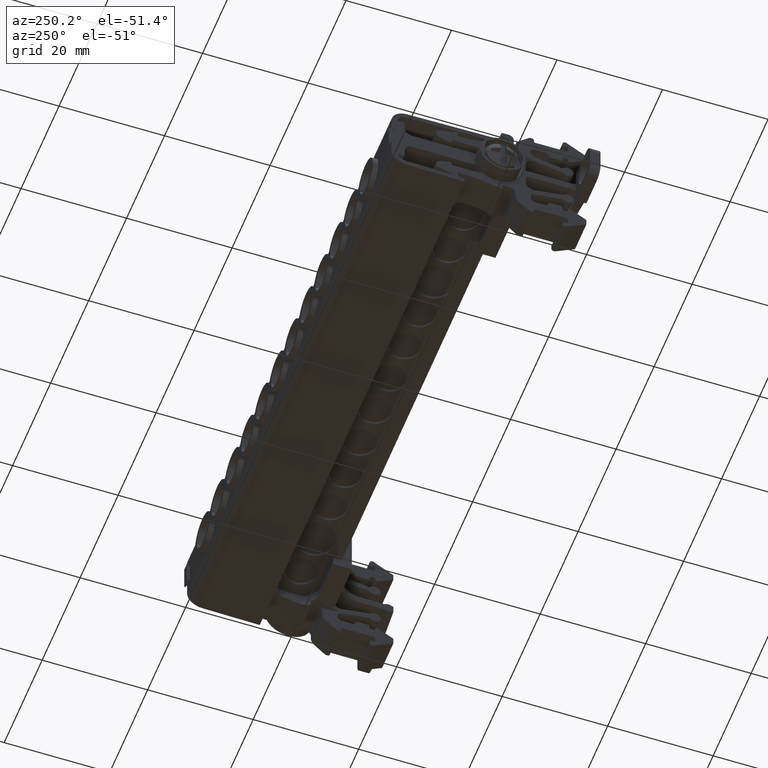
[diagram: clean part render]
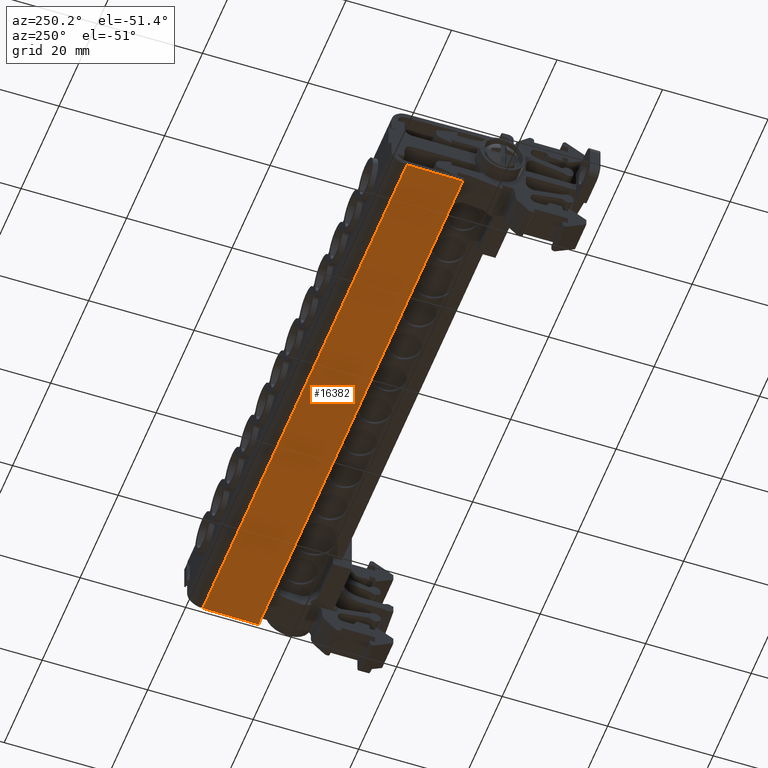
[diagram: same view with one face highlighted and labeled with its STEP entity id]
A machine part, auxiliary view. The second image highlights one B-rep face of the part: STEP entity #16382.
In plain terms, the highlighted planar face has unit normal (0, -0.0175, 0.9998).
Its self-contained STEP definition (entity closure, byte-faithful):
#4724 = EDGE_LOOP ( 'NONE', ( #27048, #26949, #26950, #26953 ) ) ;
#11834 = EDGE_CURVE ( 'NONE', #29496, #29485, #17878, .T. ) ;
#11966 = EDGE_CURVE ( 'NONE', #29537, #29515, #17065, .T. ) ;
#12070 = EDGE_CURVE ( 'NONE', #29485, #29515, #17272, .T. ) ;
#12077 = EDGE_CURVE ( 'NONE', #29537, #29496, #17243, .T. ) ;
#12169 = VECTOR ( 'NONE', #17864, 1000.000000000000000 ) ;
#12253 = VECTOR ( 'NONE', #17092, 1000.000000000000000 ) ;
#12312 = VECTOR ( 'NONE', #17236, 1000.000000000000000 ) ;
#12373 = VECTOR ( 'NONE', #17281, 1000.000000000000000 ) ;
#16382 = ADVANCED_FACE ( 'NONE', ( #25403 ), #25387, .F. ) ;
#17065 = LINE ( 'NONE', #17088, #12253 ) ;
#17088 = CARTESIAN_POINT ( 'NONE',  ( -83.37151391783997700, -35.33723547863223800, 88.61265059990434200 ) ) ;
#17092 = DIRECTION ( 'NONE',  ( -1.127746322783046500E-014, 0.9998476951563914900, 0.01745240643726647700 ) ) ;
#17236 = DIRECTION ( 'NONE',  ( -1.000000000000000000, -1.123605221867985000E-014, 1.149507329944757500E-014 ) ) ;
#17243 = LINE ( 'NONE', #17264, #12373 ) ;
#17252 = CARTESIAN_POINT ( 'NONE',  ( -70.82626770582678000, -24.74449495282748800, 88.79754757355031800 ) ) ;
#17264 = CARTESIAN_POINT ( 'NONE',  ( -84.02126770571320000, -35.33723547863527900, 88.61265059990533600 ) ) ;
#17272 = LINE ( 'NONE', #17252, #12312 ) ;
#17281 = DIRECTION ( 'NONE',  ( 1.000000000000000000, 1.123605221867979900E-014, -1.149507329944757500E-014 ) ) ;
#17861 = CARTESIAN_POINT ( 'NONE',  ( 24.22822092972950300, -35.33723547863136400, 88.61265059990378700 ) ) ;
#17864 = DIRECTION ( 'NONE',  ( -1.103372422225576800E-014, 0.9998476951563914900, 0.01745240643726647700 ) ) ;
#17878 = LINE ( 'NONE', #17861, #12169 ) ;
#23635 = AXIS2_PLACEMENT_3D ( 'NONE', #25373, #25389, #25404 ) ;
#25373 = CARTESIAN_POINT ( 'NONE',  ( -84.02126770571320000, -35.33723547863257200, 88.61265059990533600 ) ) ;
#25387 = PLANE ( 'NONE',  #23635 ) ;
#25389 = DIRECTION ( 'NONE',  ( 1.168941869417746900E-014, -0.01745240643726647700, 0.9998476951563916000 ) ) ;
#25403 = FACE_OUTER_BOUND ( 'NONE', #4724, .T. ) ;
#25404 = DIRECTION ( 'NONE',  ( 1.103372422225576800E-014, -0.9998476951563914900, -0.01745240643726647300 ) ) ;
#26949 = ORIENTED_EDGE ( 'NONE', *, *, #11834, .F. ) ;
#26950 = ORIENTED_EDGE ( 'NONE', *, *, #12077, .F. ) ;
#26953 = ORIENTED_EDGE ( 'NONE', *, *, #11966, .T. ) ;
#27048 = ORIENTED_EDGE ( 'NONE', *, *, #12070, .F. ) ;
#29485 = VERTEX_POINT ( 'NONE', #30370 ) ;
#29496 = VERTEX_POINT ( 'NONE', #30383 ) ;
#29515 = VERTEX_POINT ( 'NONE', #30355 ) ;
#29537 = VERTEX_POINT ( 'NONE', #30449 ) ;
#30355 = CARTESIAN_POINT ( 'NONE',  ( -83.37151391783992000, -24.74449495282723200, 88.79754757354943700 ) ) ;
#30370 = CARTESIAN_POINT ( 'NONE',  ( 24.22822092972946700, -24.74449495282641500, 88.79754757354888300 ) ) ;
#30383 = CARTESIAN_POINT ( 'NONE',  ( 24.22822092972950300, -35.33723547863412800, 88.61265059990378700 ) ) ;
#30449 = CARTESIAN_POINT ( 'NONE',  ( -83.37151391783997700, -35.33723547863488800, 88.61265059990434200 ) ) ;